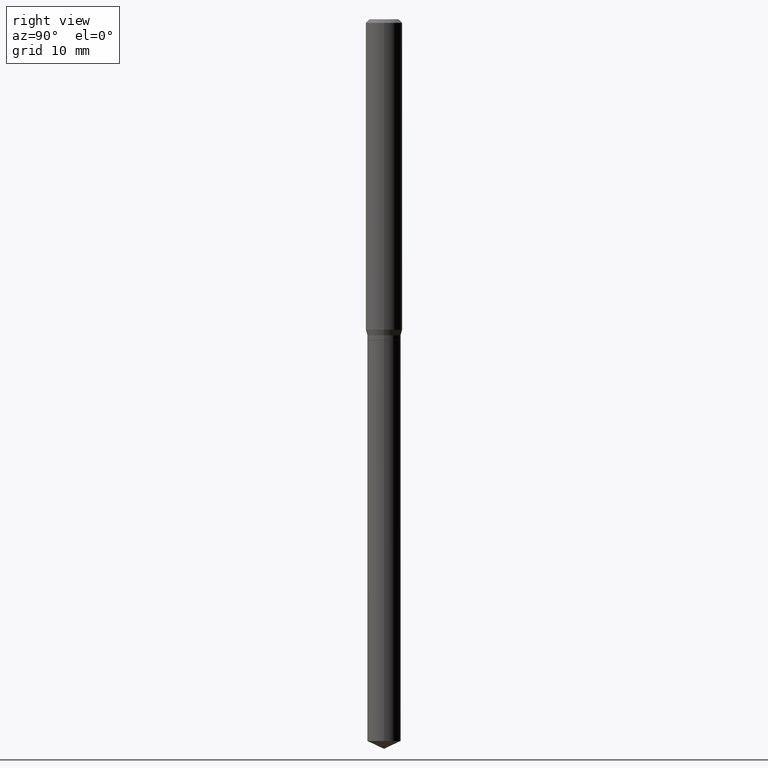
[diagram: clean part render]
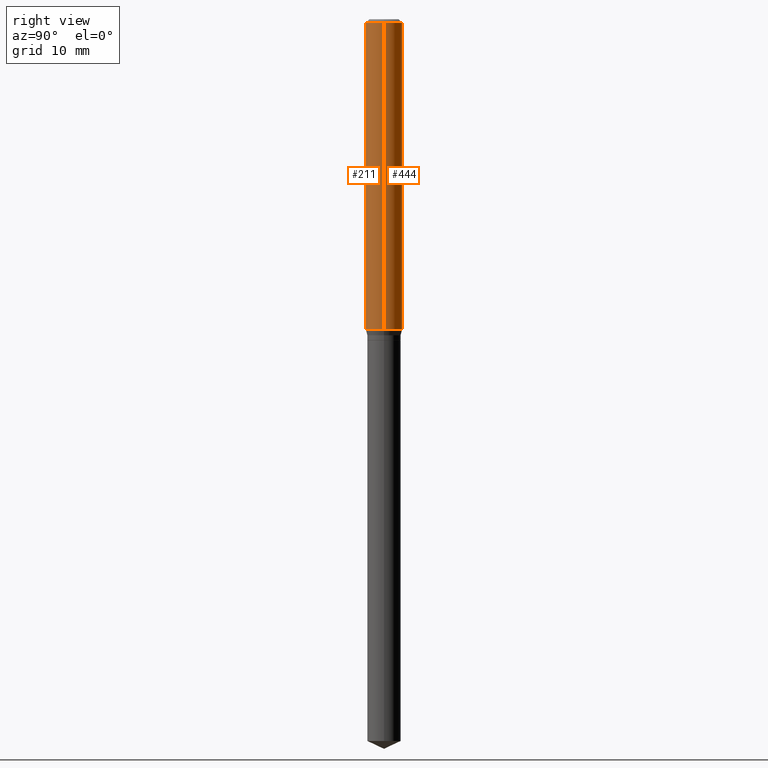
[diagram: same view with one multi-face feature highlighted, each face labeled with its STEP entity id]
A machine part, right view. The highlighted faces form ONE feature: a constant-radius fillet chain: 2 tangent blend faces with common blend radius 1.4999 mm. The faces share edges in the B-rep.
Their STEP definitions:
[1] entity #211 (Cylinder):
#9 = CARTESIAN_POINT ( 'NONE',  ( 0.05905000000000006077, -4.123439461173744764E-16, 2.879382386107503023E-30 ) ) ;
#19 = VECTOR ( 'NONE', #230, 39.37007874015748143 ) ;
#33 = CARTESIAN_POINT ( 'NONE',  ( 0.05904999999999999832, -4.535783407291118600E-16, -0.01181000000000007044 ) ) ;
#35 = EDGE_CURVE ( 'NONE', #381, #243, #399, .T. ) ;
#92 = VERTEX_POINT ( 'NONE', #297 ) ;
#97 = EDGE_CURVE ( 'NONE', #381, #92, #422, .T. ) ;
#110 = CIRCLE ( 'NONE', #228, 0.05904999999999999832 ) ;
#117 = CARTESIAN_POINT ( 'NONE',  ( -0.05905000000000006077, 4.195754854663395916E-16, -2.904631170795524694E-30 ) ) ;
#131 = VECTOR ( 'NONE', #170, 39.37007874015748143 ) ;
#170 = DIRECTION ( 'NONE',  ( -2.445468806185136877E-29, 3.491481338843145188E-15, 1.000000000000000000 ) ) ;
#173 = CARTESIAN_POINT ( 'NONE',  ( -0.05905000000000011628, -3.089059330261782575E-15, -1.004912951042912006 ) ) ;
#186 = DIRECTION ( 'NONE',  ( -2.445468806185136597E-29, 3.491481338843145583E-15, 1.000000000000000000 ) ) ;
#202 = DIRECTION ( 'NONE',  ( -2.445468806185136597E-29, 3.491481338843145583E-15, 1.000000000000000000 ) ) ;
#211 = ADVANCED_FACE ( 'NONE', ( #238 ), #384, .T. ) ;
#228 = AXIS2_PLACEMENT_3D ( 'NONE', #484, #186, #438 ) ;
#230 = DIRECTION ( 'NONE',  ( -2.445468806185136877E-29, 3.491481338843145188E-15, 1.000000000000000000 ) ) ;
#232 = EDGE_CURVE ( 'NONE', #92, #312, #451, .T. ) ;
#236 = ORIENTED_EDGE ( 'NONE', *, *, #232, .T. ) ;
#238 = FACE_OUTER_BOUND ( 'NONE', #352, .T. ) ;
#243 = VERTEX_POINT ( 'NONE', #462 ) ;
#279 = DIRECTION ( 'NONE',  ( 1.000000000000000000, -6.982962677686266711E-15, 4.876176775795935793E-29 ) ) ;
#286 = AXIS2_PLACEMENT_3D ( 'NONE', #372, #441, #407 ) ;
#292 = ORIENTED_EDGE ( 'NONE', *, *, #35, .F. ) ;
#297 = CARTESIAN_POINT ( 'NONE',  ( 0.05905000000000011628, -3.920978761845497777E-15, -1.004912951042912006 ) ) ;
#310 = CARTESIAN_POINT ( 'NONE',  ( 0.000000000000000000, 0.000000000000000000, 0.000000000000000000 ) ) ;
#312 = VERTEX_POINT ( 'NONE', #33 ) ;
#318 = ORIENTED_EDGE ( 'NONE', *, *, #354, .F. ) ;
#352 = EDGE_LOOP ( 'NONE', ( #292, #476, #236, #318 ) ) ;
#354 = EDGE_CURVE ( 'NONE', #243, #312, #110, .T. ) ;
#372 = CARTESIAN_POINT ( 'NONE',  ( 2.457483274706892712E-29, -3.508634815728122857E-15, -1.004912951042912006 ) ) ;
#381 = VERTEX_POINT ( 'NONE', #173 ) ;
#384 = CYLINDRICAL_SURFACE ( 'NONE', #427, 0.05905000000000006077 ) ;
#399 = LINE ( 'NONE', #117, #19 ) ;
#407 = DIRECTION ( 'NONE',  ( 1.000000000000000000, -6.982962677686266711E-15, 0.000000000000000000 ) ) ;
#422 = CIRCLE ( 'NONE', #286, 0.05905000000000011628 ) ;
#427 = AXIS2_PLACEMENT_3D ( 'NONE', #310, #202, #279 ) ;
#438 = DIRECTION ( 'NONE',  ( 1.000000000000000000, -6.982962677686266711E-15, 0.000000000000000000 ) ) ;
#441 = DIRECTION ( 'NONE',  ( -2.445468806185136597E-29, 3.491481338843145583E-15, 1.000000000000000000 ) ) ;
#451 = LINE ( 'NONE', #9, #131 ) ;
#462 = CARTESIAN_POINT ( 'NONE',  ( -0.05904999999999999832, -1.355359119703590011E-15, -0.01181000000000007044 ) ) ;
#476 = ORIENTED_EDGE ( 'NONE', *, *, #97, .T. ) ;
#484 = CARTESIAN_POINT ( 'NONE',  ( 2.888098660104663766E-31, -4.123439461173779647E-17, -0.01181000000000007044 ) ) ;
[2] entity #444 (Cylinder):
#9 = CARTESIAN_POINT ( 'NONE',  ( 0.05905000000000006077, -4.123439461173744764E-16, 2.879382386107503023E-30 ) ) ;
#19 = VECTOR ( 'NONE', #230, 39.37007874015748143 ) ;
#33 = CARTESIAN_POINT ( 'NONE',  ( 0.05904999999999999832, -4.535783407291118600E-16, -0.01181000000000007044 ) ) ;
#35 = EDGE_CURVE ( 'NONE', #381, #243, #399, .T. ) ;
#36 = DIRECTION ( 'NONE',  ( -2.445468806185136597E-29, 3.491481338843145583E-15, 1.000000000000000000 ) ) ;
#47 = EDGE_CURVE ( 'NONE', #312, #243, #294, .T. ) ;
#63 = ORIENTED_EDGE ( 'NONE', *, *, #232, .F. ) ;
#68 = CIRCLE ( 'NONE', #479, 0.05905000000000011628 ) ;
#87 = AXIS2_PLACEMENT_3D ( 'NONE', #159, #36, #489 ) ;
#92 = VERTEX_POINT ( 'NONE', #297 ) ;
#102 = FACE_OUTER_BOUND ( 'NONE', #284, .T. ) ;
#117 = CARTESIAN_POINT ( 'NONE',  ( -0.05905000000000006077, 4.195754854663395916E-16, -2.904631170795524694E-30 ) ) ;
#131 = VECTOR ( 'NONE', #170, 39.37007874015748143 ) ;
#159 = CARTESIAN_POINT ( 'NONE',  ( 2.888098660104663766E-31, -4.123439461173779647E-17, -0.01181000000000007044 ) ) ;
#170 = DIRECTION ( 'NONE',  ( -2.445468806185136877E-29, 3.491481338843145188E-15, 1.000000000000000000 ) ) ;
#173 = CARTESIAN_POINT ( 'NONE',  ( -0.05905000000000011628, -3.089059330261782575E-15, -1.004912951042912006 ) ) ;
#178 = ORIENTED_EDGE ( 'NONE', *, *, #47, .F. ) ;
#180 = CARTESIAN_POINT ( 'NONE',  ( 2.457483274706892712E-29, -3.508634815728122857E-15, -1.004912951042912006 ) ) ;
#183 = CARTESIAN_POINT ( 'NONE',  ( 0.000000000000000000, 0.000000000000000000, 0.000000000000000000 ) ) ;
#218 = DIRECTION ( 'NONE',  ( 1.000000000000000000, -6.982962677686266711E-15, 4.876176775795935793E-29 ) ) ;
#223 = CYLINDRICAL_SURFACE ( 'NONE', #244, 0.05905000000000006077 ) ;
#230 = DIRECTION ( 'NONE',  ( -2.445468806185136877E-29, 3.491481338843145188E-15, 1.000000000000000000 ) ) ;
#232 = EDGE_CURVE ( 'NONE', #92, #312, #451, .T. ) ;
#243 = VERTEX_POINT ( 'NONE', #462 ) ;
#244 = AXIS2_PLACEMENT_3D ( 'NONE', #183, #251, #218 ) ;
#251 = DIRECTION ( 'NONE',  ( -2.445468806185136597E-29, 3.491481338843145583E-15, 1.000000000000000000 ) ) ;
#284 = EDGE_LOOP ( 'NONE', ( #389, #388, #178, #63 ) ) ;
#294 = CIRCLE ( 'NONE', #87, 0.05904999999999999832 ) ;
#297 = CARTESIAN_POINT ( 'NONE',  ( 0.05905000000000011628, -3.920978761845497777E-15, -1.004912951042912006 ) ) ;
#312 = VERTEX_POINT ( 'NONE', #33 ) ;
#326 = DIRECTION ( 'NONE',  ( 1.000000000000000000, -6.982962677686266711E-15, 0.000000000000000000 ) ) ;
#343 = EDGE_CURVE ( 'NONE', #92, #381, #68, .T. ) ;
#381 = VERTEX_POINT ( 'NONE', #173 ) ;
#388 = ORIENTED_EDGE ( 'NONE', *, *, #35, .T. ) ;
#389 = ORIENTED_EDGE ( 'NONE', *, *, #343, .T. ) ;
#399 = LINE ( 'NONE', #117, #19 ) ;
#444 = ADVANCED_FACE ( 'NONE', ( #102 ), #223, .T. ) ;
#451 = LINE ( 'NONE', #9, #131 ) ;
#462 = CARTESIAN_POINT ( 'NONE',  ( -0.05904999999999999832, -1.355359119703590011E-15, -0.01181000000000007044 ) ) ;
#466 = DIRECTION ( 'NONE',  ( -2.445468806185136597E-29, 3.491481338843145583E-15, 1.000000000000000000 ) ) ;
#479 = AXIS2_PLACEMENT_3D ( 'NONE', #180, #466, #326 ) ;
#489 = DIRECTION ( 'NONE',  ( 1.000000000000000000, -6.982962677686266711E-15, 0.000000000000000000 ) ) ;